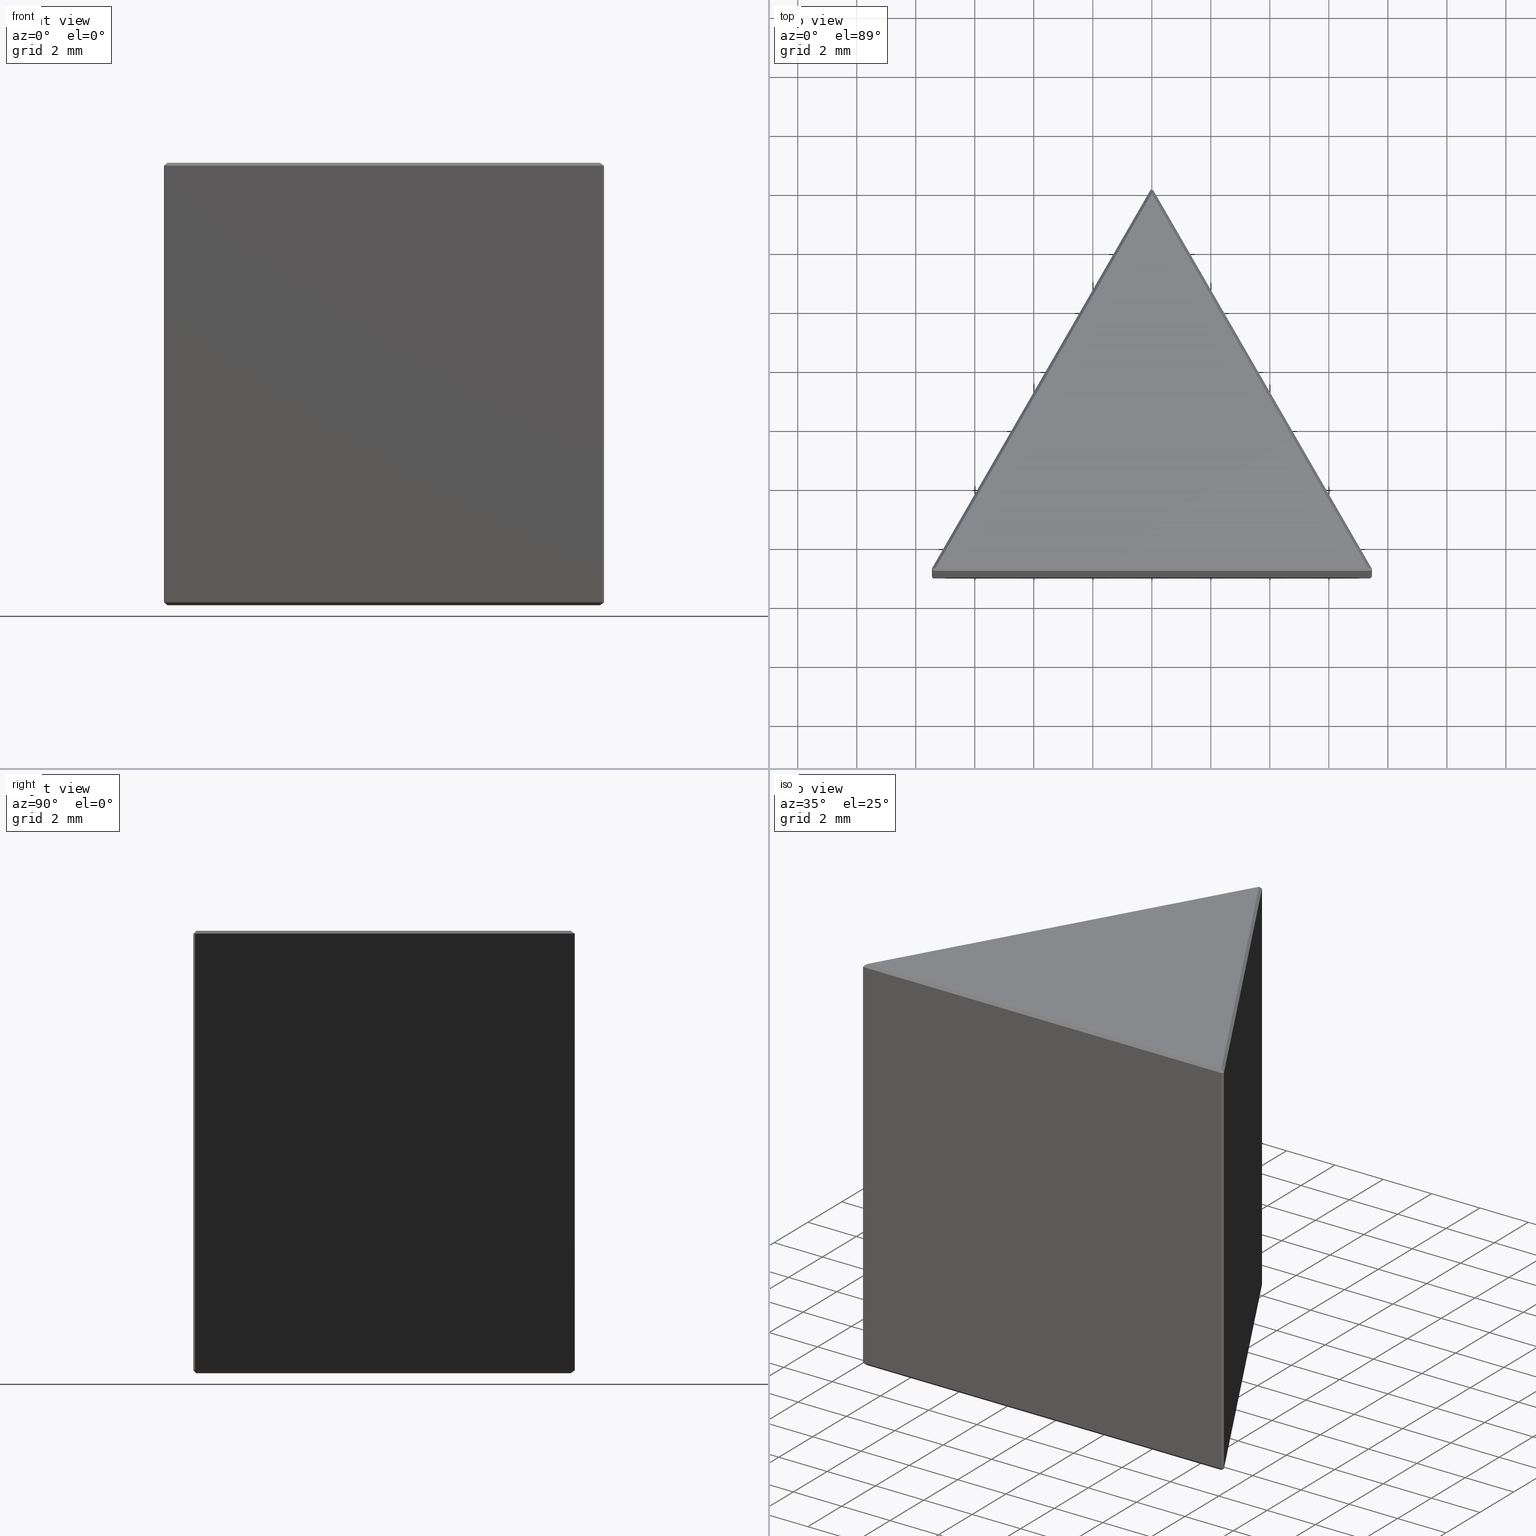
[diagram: canonical four-view strip — front | top / right | iso, engineering-drawing reading convention]
A machine part, canonical four-view strip (front | top / right | iso — engineering-drawing reading convention). The complete STEP part file that produces these views, byte-faithful:
ISO-10303-21;
HEADER;
FILE_DESCRIPTION (( 'STEP AP214' ),
    '1' );
FILE_NAME ('GPD-015-A2.STEP',
    '2022-11-08T09:14:45',
    ( '' ),
    ( '' ),
    'SwSTEP 2.0',
    'SolidWorks 2022',
    '' );
FILE_SCHEMA (( 'AUTOMOTIVE_DESIGN' ));
ENDSEC;

DATA;
#1 = DIRECTION ( 'NONE',  ( -0.4597008433809560701, 0.6279630301995642316, -0.6279630301995642316 ) ) ;
#2 = LINE ( 'NONE', #86, #348 ) ;
#3 = VERTEX_POINT ( 'NONE', #95 ) ;
#4 = DIRECTION ( 'NONE',  ( -0.7851876162409380244, 0.000000000000000000, 0.6192579489210238153 ) ) ;
#5 = ORIENTED_EDGE ( 'NONE', *, *, #187, .F. ) ;
#6 = EDGE_CURVE ( 'NONE', #84, #376, #381, .T. ) ;
#7 = DIRECTION ( 'NONE',  ( -0.5000000000000001110, 0.8660254037844387076, 0.000000000000000000 ) ) ;
#8 = ORIENTED_EDGE ( 'NONE', *, *, #495, .F. ) ;
#9 = VECTOR ( 'NONE', #98, 1000.000000000000000 ) ;
#10 = LINE ( 'NONE', #326, #322 ) ;
#11 = DIRECTION ( 'NONE',  ( -0.7736823584807547283, -0.08413109340926155921, 0.6279630301995644537 ) ) ;
#12 = ORIENTED_EDGE ( 'NONE', *, *, #75, .T. ) ;
#13 = EDGE_CURVE ( 'NONE', #156, #228, #343, .T. ) ;
#14 = DIRECTION ( 'NONE',  ( 0.1636915368707483331, 0.6109051323707288539, -0.7745966692414800736 ) ) ;
#15 = DIRECTION ( 'NONE',  ( -0.2588190451025133010, -0.9659258262890703106, -0.000000000000000000 ) ) ;
#16 = PRESENTATION_STYLE_ASSIGNMENT (( #100 ) ) ;
#17 = ORIENTED_EDGE ( 'NONE', *, *, #368, .T. ) ;
#18 = AXIS2_PLACEMENT_3D ( 'NONE', #419, #311, #496 ) ;
#19 = FILL_AREA_STYLE_COLOUR ( '', #186 ) ;
#20 = PLANE ( 'NONE',  #133 ) ;
#21 = EDGE_LOOP ( 'NONE', ( #256, #497, #431, #462 ) ) ;
#22 = CARTESIAN_POINT ( 'NONE',  ( -0.03660254037844470204, -0.06339745962155758641, 15.00000000000000000 ) ) ;
#23 = VECTOR ( 'NONE', #353, 1000.000000000000000 ) ;
#24 = VERTEX_POINT ( 'NONE', #264 ) ;
#25 = ADVANCED_FACE ( 'NONE', ( #412 ), #266, .F. ) ;
#26 = LINE ( 'NONE', #231, #49 ) ;
#27 = CARTESIAN_POINT ( 'NONE',  ( 0.04665063509461216812, -0.09419872981077971608, 0.09330127018922095006 ) ) ;
#28 = ORIENTED_EDGE ( 'NONE', *, *, #226, .F. ) ;
#29 = AXIS2_PLACEMENT_3D ( 'NONE', #85, #14, #93 ) ;
#30 = FACE_OUTER_BOUND ( 'NONE', #215, .T. ) ;
#31 = VERTEX_POINT ( 'NONE', #336 ) ;
#32 = PLANE ( 'NONE',  #70 ) ;
#33 = DIRECTION ( 'NONE',  ( -0.7071067811865765496, -0.7071067811865184849, -8.417698646425403706E-17 ) ) ;
#34 = VERTEX_POINT ( 'NONE', #105 ) ;
#35 = EDGE_CURVE ( 'NONE', #312, #31, #488, .T. ) ;
#36 = CARTESIAN_POINT ( 'NONE',  ( 7.463397459621556429, -12.92698359714502132, 0.09999999999999939493 ) ) ;
#37 = VECTOR ( 'NONE', #415, 1000.000000000000000 ) ;
#38 = PLANE ( 'NONE',  #152 ) ;
#39 = ORIENTED_EDGE ( 'NONE', *, *, #479, .T. ) ;
#40 = MANIFOLD_SOLID_BREP ( '����1', #423 ) ;
#41 = CARTESIAN_POINT ( 'NONE',  ( -7.500000000000000000, -12.99038105676657828, 0.09999999999999939493 ) ) ;
#42 = EDGE_CURVE ( 'NONE', #34, #55, #147, .T. ) ;
#43 = CARTESIAN_POINT ( 'NONE',  ( -0.02886751345948138092, -0.09226497308103918937, 14.92113248654052349 ) ) ;
#44 = ORIENTED_EDGE ( 'NONE', *, *, #42, .T. ) ;
#45 = PLANE ( 'NONE',  #102 ) ;
#46 = CARTESIAN_POINT ( 'NONE',  ( 7.463397459621556429, -12.92698359714502132, 0.09999999999999939493 ) ) ;
#47 = EDGE_LOOP ( 'NONE', ( #477, #440, #294, #309 ) ) ;
#48 = FACE_OUTER_BOUND ( 'NONE', #128, .T. ) ;
#49 = VECTOR ( 'NONE', #315, 1000.000000000000000 ) ;
#50 = CARTESIAN_POINT ( 'NONE',  ( -7.441746824526942916, -12.90288105676657793, 0.09330127018922138027 ) ) ;
#51 = EDGE_CURVE ( 'NONE', #376, #141, #338, .T. ) ;
#52 = FACE_OUTER_BOUND ( 'NONE', #208, .T. ) ;
#53 = APPLICATION_CONTEXT ( 'automotive_design' ) ;
#54 = PRODUCT_DEFINITION ( 'δ֪', '', #78, #332 ) ;
#55 = VERTEX_POINT ( 'NONE', #456 ) ;
#56 = VECTOR ( 'NONE', #197, 1000.000000000000000 ) ;
#57 = DIRECTION ( 'NONE',  ( -1.000000000000000000, 0.000000000000000000, 0.000000000000000000 ) ) ;
#58 = DIRECTION ( 'NONE',  ( -0.5000000000000001110, -0.8660254037844387076, 0.000000000000000000 ) ) ;
#59 = ORIENTED_EDGE ( 'NONE', *, *, #35, .F. ) ;
#60 = DIRECTION ( 'NONE',  ( 0.5000000000000000000, 0.8660254037844385966, -0.000000000000000000 ) ) ;
#61 = DIRECTION ( 'NONE',  ( 0.5000000000000001110, -0.8660254037844387076, -0.000000000000000000 ) ) ;
#62 = VECTOR ( 'NONE', #73, 1000.000000000000000 ) ;
#63 = VECTOR ( 'NONE', #317, 1000.000000000000000 ) ;
#64 = DIRECTION ( 'NONE',  ( 0.000000000000000000, 0.000000000000000000, -1.000000000000000000 ) ) ;
#65 = PRODUCT ( 'GPD-015-A2', 'GPD-015-A2', '', ( #94 ) ) ;
#66 = DIRECTION ( 'NONE',  ( 0.9659258262890703106, -0.2588190451025133565, 5.762713770593356352E-16 ) ) ;
#67 = CARTESIAN_POINT ( 'NONE',  ( 0.000000000000000000, 0.000000000000000000, 15.00000000000000000 ) ) ;
#68 = EDGE_CURVE ( 'NONE', #228, #55, #106, .T. ) ;
#69 = FACE_OUTER_BOUND ( 'NONE', #193, .T. ) ;
#70 = AXIS2_PLACEMENT_3D ( 'NONE', #250, #405, #486 ) ;
#71 = LINE ( 'NONE', #239, #62 ) ;
#72 = FACE_OUTER_BOUND ( 'NONE', #391, .T. ) ;
#73 = DIRECTION ( 'NONE',  ( 0.000000000000000000, 0.000000000000000000, 1.000000000000000000 ) ) ;
#74 = DIRECTION ( 'NONE',  ( 0.000000000000000000, -0.000000000000000000, 1.000000000000000000 ) ) ;
#75 = EDGE_CURVE ( 'NONE', #91, #24, #101, .T. ) ;
#76 = VECTOR ( 'NONE', #466, 1000.000000000000114 ) ;
#77 = CARTESIAN_POINT ( 'NONE',  ( -0.08660254037843957697, -0.04999999999999753253, 15.00000000000000000 ) ) ;
#78 = PRODUCT_DEFINITION_FORMATION_WITH_SPECIFIED_SOURCE ( '�κ�', '', #65, .NOT_KNOWN. ) ;
#79 = UNCERTAINTY_MEASURE_WITH_UNIT (LENGTH_MEASURE( 1.000000000000000082E-05 ), #207, 'distance_accuracy_value', 'NONE');
#80 = DIRECTION ( 'NONE',  ( 0.7851876162409382465, 0.000000000000000000, 0.6192579489210234822 ) ) ;
#81 = EDGE_LOOP ( 'NONE', ( #268, #59, #218, #117 ) ) ;
#82 = DIRECTION ( 'NONE',  ( 0.1636915368707612950, 0.6109051323707358483, 0.7745966692414717469 ) ) ;
#83 = DIRECTION ( 'NONE',  ( -0.6123724356957945814, -0.3535533905932737864, 0.7071067811865474617 ) ) ;
#84 = VERTEX_POINT ( 'NONE', #484 ) ;
#85 = CARTESIAN_POINT ( 'NONE',  ( -0.03660254037844470204, -0.06339745962155758641, 0.1000000000000006301 ) ) ;
#86 = CARTESIAN_POINT ( 'NONE',  ( 0.05000000000000061340, -0.08660254037844491992, 14.90000000000000391 ) ) ;
#87 = ORIENTED_EDGE ( 'NONE', *, *, #235, .T. ) ;
#88 = CARTESIAN_POINT ( 'NONE',  ( 7.399999999999995026, -12.99038105676657828, 14.90000000000000391 ) ) ;
#89 = AXIS2_PLACEMENT_3D ( 'NONE', #77, #473, #249 ) ;
#90 = CARTESIAN_POINT ( 'NONE',  ( -7.449999999999999289, -12.90377851638813311, 14.90000000000000391 ) ) ;
#91 = VERTEX_POINT ( 'NONE', #223 ) ;
#92 = VECTOR ( 'NONE', #406, 1000.000000000000114 ) ;
#93 = DIRECTION ( 'NONE',  ( 0.000000000000000000, 0.7851876162409433535, 0.6192579489210172650 ) ) ;
#94 = PRODUCT_CONTEXT ( 'NONE', #352, 'mechanical' ) ;
#95 = CARTESIAN_POINT ( 'NONE',  ( -7.449999999999999289, -12.90377851638813311, 14.90000000000000391 ) ) ;
#96 = ORIENTED_EDGE ( 'NONE', *, *, #342, .T. ) ;
#97 = ADVANCED_FACE ( 'NONE', ( #375 ), #20, .T. ) ;
#98 = DIRECTION ( 'NONE',  ( -0.2113248654051963216, 0.7886751345948054270, 0.5773502691896326144 ) ) ;
#99 = PRODUCT_DEFINITION_SHAPE ( 'NONE', 'NONE',  #54 ) ;
#100 = SURFACE_STYLE_USAGE ( .BOTH. , #146 ) ;
#101 = LINE ( 'NONE', #452, #241 ) ;
#102 = AXIS2_PLACEMENT_3D ( 'NONE', #429, #209, #4 ) ;
#103 = ORIENTED_EDGE ( 'NONE', *, *, #450, .T. ) ;
#104 = SURFACE_STYLE_FILL_AREA ( #410 ) ;
#105 = CARTESIAN_POINT ( 'NONE',  ( -7.426794919243112858, -12.99038105676657828, 0.09999999999999939493 ) ) ;
#106 = LINE ( 'NONE', #418, #395 ) ;
#107 = STYLED_ITEM ( 'NONE', ( #384 ), #40 ) ;
#108 = LINE ( 'NONE', #200, #313 ) ;
#109 = PLANE ( 'NONE',  #212 ) ;
#110 = EDGE_LOOP ( 'NONE', ( #389, #434, #385, #258 ) ) ;
#111 = EDGE_CURVE ( 'NONE', #312, #141, #344, .T. ) ;
#112 = CARTESIAN_POINT ( 'NONE',  ( -0.03660254037844470204, -0.06339745962155758641, 0.1000000000000006301 ) ) ;
#113 = EDGE_LOOP ( 'NONE', ( #318, #96, #176 ) ) ;
#114 = AXIS2_PLACEMENT_3D ( 'NONE', #195, #464, #155 ) ;
#115 = AXIS2_PLACEMENT_3D ( 'NONE', #330, #123, #394 ) ;
#116 = CARTESIAN_POINT ( 'NONE',  ( 7.399999999999995026, -12.99038105676657828, 15.00000000000000000 ) ) ;
#117 = ORIENTED_EDGE ( 'NONE', *, *, #75, .F. ) ;
#118 = FACE_OUTER_BOUND ( 'NONE', #158, .T. ) ;
#119 = CARTESIAN_POINT ( 'NONE',  ( -7.405662432702593279, -12.96924857022605870, 14.92113248654052349 ) ) ;
#120 = PLANE ( 'NONE',  #202 ) ;
#121 = VECTOR ( 'NONE', #377, 1000.000000000000000 ) ;
#122 = FACE_OUTER_BOUND ( 'NONE', #480, .T. ) ;
#123 = DIRECTION ( 'NONE',  ( 0.9659258262890725311, 0.2588190451025050853, 0.000000000000000000 ) ) ;
#124 = EDGE_LOOP ( 'NONE', ( #252, #500, #196 ) ) ;
#125 = EDGE_CURVE ( 'NONE', #55, #3, #71, .T. ) ;
#126 = DIRECTION ( 'NONE',  ( -1.000000000000000000, 0.000000000000000000, 0.000000000000000000 ) ) ;
#127 = FACE_OUTER_BOUND ( 'NONE', #222, .T. ) ;
#128 = EDGE_LOOP ( 'NONE', ( #350, #44, #475 ) ) ;
#129 = PLANE ( 'NONE',  #89 ) ;
#130 = FACE_OUTER_BOUND ( 'NONE', #281, .T. ) ;
#131 = ORIENTED_EDGE ( 'NONE', *, *, #246, .F. ) ;
#132 = DIRECTION ( 'NONE',  ( 0.000000000000000000, -0.7851876162409365811, 0.6192579489210255916 ) ) ;
#133 = AXIS2_PLACEMENT_3D ( 'NONE', #139, #297, #60 ) ;
#134 = LINE ( 'NONE', #43, #63 ) ;
#135 = VERTEX_POINT ( 'NONE', #390 ) ;
#136 = SURFACE_SIDE_STYLE ('',( #104 ) ) ;
#137 = ADVANCED_FACE ( 'NONE', ( #30 ), #157, .F. ) ;
#138 = EDGE_LOOP ( 'NONE', ( #407, #306, #274, #328 ) ) ;
#139 = CARTESIAN_POINT ( 'NONE',  ( 0.08660254037843956310, -0.04999999999999752559, 15.00000000000000000 ) ) ;
#140 = VECTOR ( 'NONE', #163, 1000.000000000000000 ) ;
#141 = VERTEX_POINT ( 'NONE', #191 ) ;
#142 = PRESENTATION_LAYER_ASSIGNMENT (  '', '', ( #331 ) ) ;
#143 = EDGE_CURVE ( 'NONE', #205, #144, #153, .T. ) ;
#144 = VERTEX_POINT ( 'NONE', #351 ) ;
#145 = ADVANCED_FACE ( 'NONE', ( #72 ), #236, .F. ) ;
#146 = SURFACE_SIDE_STYLE ('',( #451 ) ) ;
#147 = LINE ( 'NONE', #301, #481 ) ;
#148 = ORIENTED_EDGE ( 'NONE', *, *, #154, .T. ) ;
#149 = DIRECTION ( 'NONE',  ( -0.8660254037844387076, -0.5000000000000001110, 0.000000000000000000 ) ) ;
#150 = ORIENTED_EDGE ( 'NONE', *, *, #414, .T. ) ;
#151 = VECTOR ( 'NONE', #386, 999.9999999999998863 ) ;
#152 = AXIS2_PLACEMENT_3D ( 'NONE', #280, #15, #436 ) ;
#153 = LINE ( 'NONE', #270, #275 ) ;
#154 = EDGE_CURVE ( 'NONE', #144, #312, #302, .T. ) ;
#155 = DIRECTION ( 'NONE',  ( 0.000000000000000000, 0.000000000000000000, -1.000000000000000000 ) ) ;
#156 = VERTEX_POINT ( 'NONE', #271 ) ;
#157 = PLANE ( 'NONE',  #114 ) ;
#158 = EDGE_LOOP ( 'NONE', ( #345, #467, #5 ) ) ;
#159 = VECTOR ( 'NONE', #396, 1000.000000000000114 ) ;
#160 = CARTESIAN_POINT ( 'NONE',  ( 7.399999999999995026, -12.99038105676657828, 14.90000000000000391 ) ) ;
#161 = ADVANCED_FACE ( 'NONE', ( #118 ), #349, .T. ) ;
#162 = DIRECTION ( 'NONE',  ( 0.4472135954999463259, -0.4472135954999830187, -0.7745966692414756327 ) ) ;
#163 = DIRECTION ( 'NONE',  ( 0.000000000000000000, 0.000000000000000000, -1.000000000000000000 ) ) ;
#164 = LINE ( 'NONE', #119, #253 ) ;
#165 = FACE_OUTER_BOUND ( 'NONE', #124, .T. ) ;
#166 = ORIENTED_EDGE ( 'NONE', *, *, #226, .T. ) ;
#167 = EDGE_CURVE ( 'NONE', #3, #156, #490, .T. ) ;
#168 = PLANE ( 'NONE',  #379 ) ;
#169 = VECTOR ( 'NONE', #439, 1000.000000000000114 ) ;
#170 = CARTESIAN_POINT ( 'NONE',  ( 7.002976905571655370E-16, -0.1999999999999912959, 15.00000000000000000 ) ) ;
#171 = EDGE_LOOP ( 'NONE', ( #443, #437, #465, #299 ) ) ;
#172 = CARTESIAN_POINT ( 'NONE',  ( 7.399999999999995026, -12.99038105676657828, 14.90000000000000391 ) ) ;
#173 = PLANE ( 'NONE',  #493 ) ;
#174 = EDGE_LOOP ( 'NONE', ( #150, #189, #277 ) ) ;
#175 = CARTESIAN_POINT ( 'NONE',  ( 0.000000000000000000, -12.89038105676658219, 15.00000000000000000 ) ) ;
#176 = ORIENTED_EDGE ( 'NONE', *, *, #453, .F. ) ;
#177 = EDGE_CURVE ( 'NONE', #156, #376, #458, .T. ) ;
#178 =( LENGTH_UNIT ( ) NAMED_UNIT ( * ) SI_UNIT ( .MILLI., .METRE. ) );
#179 = AXIS2_PLACEMENT_3D ( 'NONE', #220, #183, #188 ) ;
#180 = UNCERTAINTY_MEASURE_WITH_UNIT (LENGTH_MEASURE( 1.000000000000000082E-05 ), #178, 'distance_accuracy_value', 'NONE');
#181 = CARTESIAN_POINT ( 'NONE',  ( 0.05000000000000061340, -0.08660254037844491992, 14.90000000000000391 ) ) ;
#182 = CARTESIAN_POINT ( 'NONE',  ( 0.000000000000000000, 0.000000000000000000, 0.09999999999999939493 ) ) ;
#183 = DIRECTION ( 'NONE',  ( 0.000000000000000000, 0.000000000000000000, 1.000000000000000000 ) ) ;
#184 = DIRECTION ( 'NONE',  ( -0.5000000000000000000, -0.8660254037844385966, 0.000000000000000000 ) ) ;
#185 = VECTOR ( 'NONE', #494, 1000.000000000000114 ) ;
#186 = COLOUR_RGB ( '',1.000000000000000000, 1.000000000000000000, 1.000000000000000000 ) ;
#187 = EDGE_CURVE ( 'NONE', #24, #141, #392, .T. ) ;
#188 = DIRECTION ( 'NONE',  ( 1.000000000000000000, 0.000000000000000000, 0.000000000000000000 ) ) ;
#189 = ORIENTED_EDGE ( 'NONE', *, *, #495, .T. ) ;
#190 = CARTESIAN_POINT ( 'NONE',  ( -7.120345233597996458E-16, -0.1999999999999990674, 0.000000000000000000 ) ) ;
#191 = CARTESIAN_POINT ( 'NONE',  ( 7.463397459621556429, -12.92698359714502132, 14.90000000000000391 ) ) ;
#192 = EDGE_CURVE ( 'NONE', #3, #91, #272, .T. ) ;
#193 = EDGE_LOOP ( 'NONE', ( #166, #424, #103 ) ) ;
#194 = VECTOR ( 'NONE', #305, 1000.000000000000114 ) ;
#195 = CARTESIAN_POINT ( 'NONE',  ( 7.463397459621556429, -12.92698359714502132, 15.00000000000000000 ) ) ;
#196 = ORIENTED_EDGE ( 'NONE', *, *, #192, .F. ) ;
#197 = DIRECTION ( 'NONE',  ( 0.7071067811865765496, 0.7071067811865185959, 5.642141084862626987E-17 ) ) ;
#198 = EDGE_LOOP ( 'NONE', ( #148, #459, #290, #448 ) ) ;
#199 = EDGE_CURVE ( 'NONE', #34, #144, #26, .T. ) ;
#200 = CARTESIAN_POINT ( 'NONE',  ( -7.426794919243112858, -12.99038105676657828, 15.00000000000000000 ) ) ;
#201 = ORIENTED_EDGE ( 'NONE', *, *, #393, .T. ) ;
#202 = AXIS2_PLACEMENT_3D ( 'NONE', #90, #430, #80 ) ;
#203 = LINE ( 'NONE', #172, #449 ) ;
#204 = LINE ( 'NONE', #327, #92 ) ;
#205 = VERTEX_POINT ( 'NONE', #36 ) ;
#206 = DIRECTION ( 'NONE',  ( 1.000000000000000000, 0.000000000000000000, 0.000000000000000000 ) ) ;
#207 =( LENGTH_UNIT ( ) NAMED_UNIT ( * ) SI_UNIT ( .MILLI., .METRE. ) );
#208 = EDGE_LOOP ( 'NONE', ( #87, #17, #131 ) ) ;
#209 = DIRECTION ( 'NONE',  ( -0.6109051323707357373, -0.1636915368707450857, -0.7745966692414752996 ) ) ;
#210 = DIRECTION ( 'NONE',  ( -0.5000000000000000000, 0.8660254037844385966, 0.000000000000000000 ) ) ;
#211 = ORIENTED_EDGE ( 'NONE', *, *, #235, .F. ) ;
#212 = AXIS2_PLACEMENT_3D ( 'NONE', #67, #387, #422 ) ;
#213 = PLANE ( 'NONE',  #388 ) ;
#214 = MECHANICAL_DESIGN_GEOMETRIC_PRESENTATION_REPRESENTATION (  '', ( #331 ), #254 ) ;
#215 = EDGE_LOOP ( 'NONE', ( #492, #367, #489, #399 ) ) ;
#216 = LINE ( 'NONE', #355, #354 ) ;
#217 = FACE_OUTER_BOUND ( 'NONE', #198, .T. ) ;
#218 = ORIENTED_EDGE ( 'NONE', *, *, #337, .F. ) ;
#219 = AXIS2_PLACEMENT_3D ( 'NONE', #182, #221, #184 ) ;
#220 = CARTESIAN_POINT ( 'NONE',  ( 0.000000000000000000, 0.000000000000000000, 0.000000000000000000 ) ) ;
#221 = DIRECTION ( 'NONE',  ( 0.6123724356957959136, -0.3535533905932745635, 0.7071067811865459074 ) ) ;
#222 = EDGE_LOOP ( 'NONE', ( #237, #28, #211, #300 ) ) ;
#223 = CARTESIAN_POINT ( 'NONE',  ( -7.326794919243119431, -12.89038105676658219, 15.00000000000000000 ) ) ;
#224 = EDGE_CURVE ( 'NONE', #31, #34, #108, .T. ) ;
#225 = LINE ( 'NONE', #259, #296 ) ;
#226 = EDGE_CURVE ( 'NONE', #232, #135, #421, .T. ) ;
#227 = VECTOR ( 'NONE', #66, 1000.000000000000114 ) ;
#228 = VERTEX_POINT ( 'NONE', #112 ) ;
#229 = LINE ( 'NONE', #27, #194 ) ;
#230 = ORIENTED_EDGE ( 'NONE', *, *, #269, .F. ) ;
#231 = CARTESIAN_POINT ( 'NONE',  ( -7.500000000000000000, -12.99038105676657828, 0.09999999999999939493 ) ) ;
#232 = VERTEX_POINT ( 'NONE', #190 ) ;
#233 = LINE ( 'NONE', #316, #261 ) ;
#234 = ORIENTED_EDGE ( 'NONE', *, *, #224, .F. ) ;
#235 = EDGE_CURVE ( 'NONE', #84, #232, #229, .T. ) ;
#236 = PLANE ( 'NONE',  #463 ) ;
#237 = ORIENTED_EDGE ( 'NONE', *, *, #453, .T. ) ;
#238 = ADVANCED_FACE ( 'NONE', ( #460 ), #109, .F. ) ;
#239 = CARTESIAN_POINT ( 'NONE',  ( -7.449999999999999289, -12.90377851638813311, 15.00000000000000000 ) ) ;
#240 = DIRECTION ( 'NONE',  ( -0.5773502691896222894, -0.5773502691896273964, 0.5773502691896275074 ) ) ;
#241 = VECTOR ( 'NONE', #262, 1000.000000000000000 ) ;
#242 = CARTESIAN_POINT ( 'NONE',  ( -7.413397459621560159, -13.04038105676657544, 15.00000000000000000 ) ) ;
#243 =( NAMED_UNIT ( * ) PLANE_ANGLE_UNIT ( ) SI_UNIT ( $, .RADIAN. ) );
#244 = ORIENTED_EDGE ( 'NONE', *, *, #42, .F. ) ;
#245 = PLANE ( 'NONE',  #372 ) ;
#246 = EDGE_CURVE ( 'NONE', #84, #228, #233, .T. ) ;
#247 = CARTESIAN_POINT ( 'NONE',  ( -7.426794919243112858, -12.99038105676657828, 0.09999999999999939493 ) ) ;
#248 = ORIENTED_EDGE ( 'NONE', *, *, #269, .T. ) ;
#249 = DIRECTION ( 'NONE',  ( 0.5000000000000000000, -0.8660254037844385966, 0.000000000000000000 ) ) ;
#250 = CARTESIAN_POINT ( 'NONE',  ( 0.000000000000000000, 0.000000000000000000, 0.000000000000000000 ) ) ;
#251 = DIRECTION ( 'NONE',  ( 0.3139815150998024329, 0.7120941236088188520, -0.6279630301995657859 ) ) ;
#252 = ORIENTED_EDGE ( 'NONE', *, *, #416, .T. ) ;
#253 = VECTOR ( 'NONE', #279, 1000.000000000000000 ) ;
#254 =( GEOMETRIC_REPRESENTATION_CONTEXT ( 3 ) GLOBAL_UNCERTAINTY_ASSIGNED_CONTEXT ( ( #428 ) ) GLOBAL_UNIT_ASSIGNED_CONTEXT ( ( #454, #442, #487 ) ) REPRESENTATION_CONTEXT ( 'NONE', 'WORKASPACE' ) );
#255 = DIRECTION ( 'NONE',  ( 0.4597008433809345318, -0.6279630301995721142, -0.6279630301995721142 ) ) ;
#256 = ORIENTED_EDGE ( 'NONE', *, *, #125, .T. ) ;
#257 = ORIENTED_EDGE ( 'NONE', *, *, #6, .T. ) ;
#258 = ORIENTED_EDGE ( 'NONE', *, *, #167, .F. ) ;
#259 = CARTESIAN_POINT ( 'NONE',  ( 0.000000000000000000, -12.89038105676657864, 0.000000000000000000 ) ) ;
#260 = ADVANCED_FACE ( 'NONE', ( #122 ), #245, .T. ) ;
#261 = VECTOR ( 'NONE', #404, 1000.000000000000114 ) ;
#262 = DIRECTION ( 'NONE',  ( 1.000000000000000000, 0.000000000000000000, 0.000000000000000000 ) ) ;
#263 = ADVANCED_FACE ( 'NONE', ( #52 ), #397, .T. ) ;
#264 = CARTESIAN_POINT ( 'NONE',  ( 7.326794919243120319, -12.89038105676658219, 15.00000000000000000 ) ) ;
#265 = CARTESIAN_POINT ( 'NONE',  ( 0.05000000000000056483, -0.08660254037844497543, 15.00000000000000000 ) ) ;
#266 = PLANE ( 'NONE',  #219 ) ;
#267 = VECTOR ( 'NONE', #64, 1000.000000000000000 ) ;
#268 = ORIENTED_EDGE ( 'NONE', *, *, #288, .F. ) ;
#269 = EDGE_CURVE ( 'NONE', #24, #482, #10, .T. ) ;
#270 = CARTESIAN_POINT ( 'NONE',  ( 7.463397459621556429, -12.92698359714502132, 0.09999999999999939493 ) ) ;
#271 = CARTESIAN_POINT ( 'NONE',  ( -0.03660254037844470204, -0.06339745962155758641, 14.90000000000000391 ) ) ;
#272 = LINE ( 'NONE', #427, #151 ) ;
#273 = ADVANCED_FACE ( 'NONE', ( #357 ), #129, .T. ) ;
#274 = ORIENTED_EDGE ( 'NONE', *, *, #246, .T. ) ;
#275 = VECTOR ( 'NONE', #33, 999.9999999999998863 ) ;
#276 = DIRECTION ( 'NONE',  ( 0.5000000000000001110, 0.8660254037844387076, 0.000000000000000000 ) ) ;
#277 = ORIENTED_EDGE ( 'NONE', *, *, #177, .F. ) ;
#278 = CARTESIAN_POINT ( 'NONE',  ( 0.05000000000000061340, -0.08660254037844491992, 14.90000000000000391 ) ) ;
#279 = DIRECTION ( 'NONE',  ( 0.5773502691896157391, 0.5773502691896308381, 0.5773502691896308381 ) ) ;
#280 = CARTESIAN_POINT ( 'NONE',  ( -0.03660254037844470204, -0.06339745962155758641, 15.00000000000000000 ) ) ;
#281 = EDGE_LOOP ( 'NONE', ( #244, #234, #382, #362 ) ) ;
#282 = COLOUR_RGB ( '',1.000000000000000000, 1.000000000000000000, 1.000000000000000000 ) ;
#283 = ADVANCED_FACE ( 'NONE', ( #287 ), #168, .F. ) ;
#284 = CARTESIAN_POINT ( 'NONE',  ( 7.500000000000000000, -12.99038105676657828, 0.09999999999999939493 ) ) ;
#285 = ORIENTED_EDGE ( 'NONE', *, *, #51, .T. ) ;
#286 = DIRECTION ( 'NONE',  ( 0.000000000000000000, 1.000000000000000000, 0.000000000000000000 ) ) ;
#287 = FACE_OUTER_BOUND ( 'NONE', #47, .T. ) ;
#288 = EDGE_CURVE ( 'NONE', #31, #91, #164, .T. ) ;
#289 = FACE_OUTER_BOUND ( 'NONE', #138, .T. ) ;
#290 = ORIENTED_EDGE ( 'NONE', *, *, #224, .T. ) ;
#291 = MECHANICAL_DESIGN_GEOMETRIC_PRESENTATION_REPRESENTATION (  '', ( #107 ), #347 ) ;
#292 = FACE_OUTER_BOUND ( 'NONE', #113, .T. ) ;
#293 = LINE ( 'NONE', #433, #140 ) ;
#294 = ORIENTED_EDGE ( 'NONE', *, *, #426, .F. ) ;
#295 = ADVANCED_FACE ( 'NONE', ( #438 ), #360, .T. ) ;
#296 = VECTOR ( 'NONE', #57, 1000.000000000000000 ) ;
#297 = DIRECTION ( 'NONE',  ( -0.6123724356957973569, 0.3535533905932753962, 0.7071067811865443531 ) ) ;
#298 = SHAPE_DEFINITION_REPRESENTATION ( #99, #445 ) ;
#299 = ORIENTED_EDGE ( 'NONE', *, *, #450, .F. ) ;
#300 = ORIENTED_EDGE ( 'NONE', *, *, #479, .F. ) ;
#301 = CARTESIAN_POINT ( 'NONE',  ( -7.426794919243112858, -12.99038105676657828, 0.09999999999999939493 ) ) ;
#302 = LINE ( 'NONE', #116, #23 ) ;
#303 = VECTOR ( 'NONE', #276, 999.9999999999998863 ) ;
#304 = PRODUCT_RELATED_PRODUCT_CATEGORY ( 'part', '', ( #65 ) ) ;
#305 = DIRECTION ( 'NONE',  ( -0.3139815150997820048, -0.7120941236088359494, -0.6279630301995564601 ) ) ;
#306 = ORIENTED_EDGE ( 'NONE', *, *, #6, .F. ) ;
#307 = ADVANCED_FACE ( 'NONE', ( #48 ), #45, .T. ) ;
#308 = CARTESIAN_POINT ( 'NONE',  ( 7.434529946162070857, -12.91924857022605799, 14.92113248654052526 ) ) ;
#309 = ORIENTED_EDGE ( 'NONE', *, *, #374, .F. ) ;
#310 = EDGE_CURVE ( 'NONE', #482, #91, #320, .T. ) ;
#311 = DIRECTION ( 'NONE',  ( 0.4472135954999530427, -0.4472135954999897911, 0.7745966692414678612 ) ) ;
#312 = VERTEX_POINT ( 'NONE', #88 ) ;
#313 = VECTOR ( 'NONE', #502, 1000.000000000000000 ) ;
#314 = AXIS2_PLACEMENT_3D ( 'NONE', #370, #286, #74 ) ;
#315 = DIRECTION ( 'NONE',  ( 1.000000000000000000, 0.000000000000000000, 0.000000000000000000 ) ) ;
#316 = CARTESIAN_POINT ( 'NONE',  ( -0.03660254037844470204, -0.06339745962155758641, 0.1000000000000006301 ) ) ;
#317 = DIRECTION ( 'NONE',  ( 0.2113248654052017617, -0.7886751345948004310, 0.5773502691896373884 ) ) ;
#318 = ORIENTED_EDGE ( 'NONE', *, *, #143, .T. ) ;
#319 = ADVANCED_FACE ( 'NONE', ( #432 ), #213, .T. ) ;
#320 = LINE ( 'NONE', #242, #159 ) ;
#321 = LINE ( 'NONE', #46, #457 ) ;
#322 = VECTOR ( 'NONE', #468, 1000.000000000000114 ) ;
#323 = CARTESIAN_POINT ( 'NONE',  ( 0.05000000000000061340, -0.08660254037844491992, 14.90000000000000391 ) ) ;
#324 = LINE ( 'NONE', #366, #169 ) ;
#325 = VERTEX_POINT ( 'NONE', #470 ) ;
#326 = CARTESIAN_POINT ( 'NONE',  ( -0.08660254037843957697, -0.04999999999999753253, 15.00000000000000000 ) ) ;
#327 = CARTESIAN_POINT ( 'NONE',  ( 0.08660254037844293540, -0.04999999999999946848, 0.000000000000000000 ) ) ;
#328 = ORIENTED_EDGE ( 'NONE', *, *, #13, .F. ) ;
#329 = PLANE ( 'NONE',  #417 ) ;
#330 = CARTESIAN_POINT ( 'NONE',  ( -7.426794919243112858, -12.99038105676657828, 15.00000000000000000 ) ) ;
#331 = STYLED_ITEM ( 'NONE', ( #16 ), #445 ) ;
#332 = PRODUCT_DEFINITION_CONTEXT ( 'detailed design', #53, 'design' ) ;
#333 =( NAMED_UNIT ( * ) SI_UNIT ( $, .STERADIAN. ) SOLID_ANGLE_UNIT ( ) );
#334 = LINE ( 'NONE', #50, #364 ) ;
#335 = LINE ( 'NONE', #446, #9 ) ;
#336 = CARTESIAN_POINT ( 'NONE',  ( -7.426794919243112858, -12.99038105676657828, 14.90000000000000391 ) ) ;
#337 = EDGE_CURVE ( 'NONE', #24, #312, #203, .T. ) ;
#338 = LINE ( 'NONE', #483, #485 ) ;
#339 = APPLICATION_PROTOCOL_DEFINITION ( 'draft international standard', 'automotive_design', 1998, #53 ) ;
#340 = SURFACE_STYLE_USAGE ( .BOTH. , #136 ) ;
#341 = DIRECTION ( 'NONE',  ( 0.000000000000000000, 0.8660254037844242747, -0.5000000000000247580 ) ) ;
#342 = EDGE_CURVE ( 'NONE', #144, #135, #216, .T. ) ;
#343 = LINE ( 'NONE', #22, #267 ) ;
#344 = LINE ( 'NONE', #160, #56 ) ;
#345 = ORIENTED_EDGE ( 'NONE', *, *, #337, .T. ) ;
#346 = CARTESIAN_POINT ( 'NONE',  ( 7.500000000000000000, -12.99038105676657828, 15.00000000000000000 ) ) ;
#347 =( GEOMETRIC_REPRESENTATION_CONTEXT ( 3 ) GLOBAL_UNCERTAINTY_ASSIGNED_CONTEXT ( ( #180 ) ) GLOBAL_UNIT_ASSIGNED_CONTEXT ( ( #178, #444, #333 ) ) REPRESENTATION_CONTEXT ( 'NONE', 'WORKASPACE' ) );
#348 = VECTOR ( 'NONE', #251, 1000.000000000000114 ) ;
#349 = PLANE ( 'NONE',  #18 ) ;
#350 = ORIENTED_EDGE ( 'NONE', *, *, #426, .T. ) ;
#351 = CARTESIAN_POINT ( 'NONE',  ( 7.399999999999995026, -12.99038105676657828, 0.09999999999999939493 ) ) ;
#352 = APPLICATION_CONTEXT ( 'automotive_design' ) ;
#353 = DIRECTION ( 'NONE',  ( 0.000000000000000000, 0.000000000000000000, 1.000000000000000000 ) ) ;
#354 = VECTOR ( 'NONE', #1, 1000.000000000000000 ) ;
#355 = CARTESIAN_POINT ( 'NONE',  ( 7.395096189432329936, -12.98368232695579927, 0.09330127018922129700 ) ) ;
#356 = LINE ( 'NONE', #247, #471 ) ;
#357 = FACE_OUTER_BOUND ( 'NONE', #359, .T. ) ;
#358 =( NAMED_UNIT ( * ) SI_UNIT ( $, .STERADIAN. ) SOLID_ANGLE_UNIT ( ) );
#359 = EDGE_LOOP ( 'NONE', ( #371, #411, #8, #230 ) ) ;
#360 = PLANE ( 'NONE',  #501 ) ;
#361 = LINE ( 'NONE', #474, #403 ) ;
#362 = ORIENTED_EDGE ( 'NONE', *, *, #125, .F. ) ;
#363 = ADVANCED_FACE ( 'NONE', ( #292 ), #329, .T. ) ;
#364 = VECTOR ( 'NONE', #11, 1000.000000000000000 ) ;
#365 = DIRECTION ( 'NONE',  ( 0.000000000000000000, -0.7071067811865475727, 0.7071067811865475727 ) ) ;
#366 = CARTESIAN_POINT ( 'NONE',  ( -7.449999999999999289, -12.90377851638813311, 14.90000000000000391 ) ) ;
#367 = ORIENTED_EDGE ( 'NONE', *, *, #154, .F. ) ;
#368 = EDGE_CURVE ( 'NONE', #232, #228, #335, .T. ) ;
#369 = DIRECTION ( 'NONE',  ( 0.000000000000000000, 0.000000000000000000, 1.000000000000000000 ) ) ;
#370 = CARTESIAN_POINT ( 'NONE',  ( -7.500000000000000000, -12.99038105676657828, 15.00000000000000000 ) ) ;
#371 = ORIENTED_EDGE ( 'NONE', *, *, #187, .T. ) ;
#372 = AXIS2_PLACEMENT_3D ( 'NONE', #435, #369, #441 ) ;
#373 =( GEOMETRIC_REPRESENTATION_CONTEXT ( 3 ) GLOBAL_UNCERTAINTY_ASSIGNED_CONTEXT ( ( #79 ) ) GLOBAL_UNIT_ASSIGNED_CONTEXT ( ( #207, #243, #358 ) ) REPRESENTATION_CONTEXT ( 'NONE', 'WORKASPACE' ) );
#374 = EDGE_CURVE ( 'NONE', #135, #325, #225, .T. ) ;
#375 = FACE_OUTER_BOUND ( 'NONE', #110, .T. ) ;
#376 = VERTEX_POINT ( 'NONE', #181 ) ;
#377 = DIRECTION ( 'NONE',  ( 0.000000000000000000, 0.000000000000000000, 1.000000000000000000 ) ) ;
#378 = ADVANCED_FACE ( 'NONE', ( #69 ), #32, .F. ) ;
#379 = AXIS2_PLACEMENT_3D ( 'NONE', #41, #400, #206 ) ;
#380 = APPLICATION_PROTOCOL_DEFINITION ( 'draft international standard', 'automotive_design', 1998, #352 ) ;
#381 = LINE ( 'NONE', #265, #121 ) ;
#382 = ORIENTED_EDGE ( 'NONE', *, *, #416, .F. ) ;
#383 = EDGE_CURVE ( 'NONE', #325, #55, #334, .T. ) ;
#384 = PRESENTATION_STYLE_ASSIGNMENT (( #340 ) ) ;
#385 = ORIENTED_EDGE ( 'NONE', *, *, #414, .F. ) ;
#386 = DIRECTION ( 'NONE',  ( 0.7736823584807538401, 0.08413109340926433477, 0.6279630301995650088 ) ) ;
#387 = DIRECTION ( 'NONE',  ( 0.8660254037844387076, -0.5000000000000001110, 0.000000000000000000 ) ) ;
#388 = AXIS2_PLACEMENT_3D ( 'NONE', #175, #365, #126 ) ;
#389 = ORIENTED_EDGE ( 'NONE', *, *, #192, .T. ) ;
#390 = CARTESIAN_POINT ( 'NONE',  ( 7.326794919243113213, -12.89038105676657864, 0.000000000000000000 ) ) ;
#391 = EDGE_LOOP ( 'NONE', ( #257, #285, #201, #39 ) ) ;
#392 = LINE ( 'NONE', #308, #185 ) ;
#393 = EDGE_CURVE ( 'NONE', #141, #205, #293, .T. ) ;
#394 = DIRECTION ( 'NONE',  ( 0.000000000000000000, 0.000000000000000000, -1.000000000000000000 ) ) ;
#395 = VECTOR ( 'NONE', #58, 999.9999999999998863 ) ;
#396 = DIRECTION ( 'NONE',  ( -0.5000000000000001110, -0.8660254037844385966, 0.000000000000000000 ) ) ;
#397 = PLANE ( 'NONE',  #29 ) ;
#398 = PLANE ( 'NONE',  #314 ) ;
#399 = ORIENTED_EDGE ( 'NONE', *, *, #393, .F. ) ;
#400 = DIRECTION ( 'NONE',  ( -0.000000000000000000, 0.7071067811865475727, 0.7071067811865475727 ) ) ;
#401 = ADVANCED_FACE ( 'NONE', ( #127 ), #173, .F. ) ;
#402 = PRESENTATION_LAYER_ASSIGNMENT (  '', '', ( #107 ) ) ;
#403 = VECTOR ( 'NONE', #7, 999.9999999999998863 ) ;
#404 = DIRECTION ( 'NONE',  ( -0.9659258262890703106, 0.2588190451025133010, 1.432351769963625949E-14 ) ) ;
#405 = DIRECTION ( 'NONE',  ( 0.000000000000000000, 0.000000000000000000, 1.000000000000000000 ) ) ;
#406 = DIRECTION ( 'NONE',  ( 0.5000000000000001110, 0.8660254037844385966, 0.000000000000000000 ) ) ;
#407 = ORIENTED_EDGE ( 'NONE', *, *, #177, .T. ) ;
#408 = FILL_AREA_STYLE ('',( #19 ) ) ;
#409 = ORIENTED_EDGE ( 'NONE', *, *, #310, .T. ) ;
#410 = FILL_AREA_STYLE ('',( #447 ) ) ;
#411 = ORIENTED_EDGE ( 'NONE', *, *, #51, .F. ) ;
#412 = FACE_OUTER_BOUND ( 'NONE', #171, .T. ) ;
#413 = DIRECTION ( 'NONE',  ( -0.2588190451025050298, 0.9659258262890724200, 1.376112411038487962E-14 ) ) ;
#414 = EDGE_CURVE ( 'NONE', #156, #482, #134, .T. ) ;
#415 = DIRECTION ( 'NONE',  ( -1.000000000000000000, 0.000000000000000000, 0.000000000000000000 ) ) ;
#416 = EDGE_CURVE ( 'NONE', #3, #31, #324, .T. ) ;
#417 = AXIS2_PLACEMENT_3D ( 'NONE', #478, #162, #341 ) ;
#418 = CARTESIAN_POINT ( 'NONE',  ( 0.000000000000000000, 0.000000000000000000, 0.1000000000000011297 ) ) ;
#419 = CARTESIAN_POINT ( 'NONE',  ( 7.399999999999995026, -12.99038105676657828, 14.90000000000000391 ) ) ;
#420 = ADVANCED_FACE ( 'NONE', ( #217 ), #398, .F. ) ;
#421 = LINE ( 'NONE', #461, #76 ) ;
#422 = DIRECTION ( 'NONE',  ( 0.5000000000000000000, 0.8660254037844385966, 0.000000000000000000 ) ) ;
#423 = CLOSED_SHELL ( 'NONE', ( #145, #238, #420, #260, #378, #319, #472, #283, #137, #161, #498, #307, #363, #273, #97, #25, #401, #295, #263, #491 ) ) ;
#424 = ORIENTED_EDGE ( 'NONE', *, *, #374, .T. ) ;
#425 = CARTESIAN_POINT ( 'NONE',  ( 1.355252715606880543E-17, 0.000000000000000000, 14.90000000000000391 ) ) ;
#426 = EDGE_CURVE ( 'NONE', #325, #34, #356, .T. ) ;
#427 = CARTESIAN_POINT ( 'NONE',  ( -7.449999999999999289, -12.90377851638813311, 14.90000000000000391 ) ) ;
#428 = UNCERTAINTY_MEASURE_WITH_UNIT (LENGTH_MEASURE( 1.000000000000000082E-05 ), #454, 'distance_accuracy_value', 'NONE');
#429 = CARTESIAN_POINT ( 'NONE',  ( -7.426794919243112858, -12.99038105676657828, 0.09999999999999939493 ) ) ;
#430 = DIRECTION ( 'NONE',  ( -0.6109051323707342940, -0.1636915368707557716, 0.7745966692414740784 ) ) ;
#431 = ORIENTED_EDGE ( 'NONE', *, *, #13, .T. ) ;
#432 = FACE_OUTER_BOUND ( 'NONE', #81, .T. ) ;
#433 = CARTESIAN_POINT ( 'NONE',  ( 7.463397459621556429, -12.92698359714502132, 15.00000000000000000 ) ) ;
#434 = ORIENTED_EDGE ( 'NONE', *, *, #310, .F. ) ;
#435 = CARTESIAN_POINT ( 'NONE',  ( 0.000000000000000000, 0.000000000000000000, 15.00000000000000000 ) ) ;
#436 = DIRECTION ( 'NONE',  ( 0.000000000000000000, 0.000000000000000000, -1.000000000000000000 ) ) ;
#437 = ORIENTED_EDGE ( 'NONE', *, *, #68, .F. ) ;
#438 = FACE_OUTER_BOUND ( 'NONE', #174, .T. ) ;
#439 = DIRECTION ( 'NONE',  ( 0.2588190451025050298, -0.9659258262890724200, -2.821070542431267271E-17 ) ) ;
#440 = ORIENTED_EDGE ( 'NONE', *, *, #199, .F. ) ;
#441 = DIRECTION ( 'NONE',  ( 1.000000000000000000, 0.000000000000000000, -0.000000000000000000 ) ) ;
#442 =( NAMED_UNIT ( * ) PLANE_ANGLE_UNIT ( ) SI_UNIT ( $, .RADIAN. ) );
#443 = ORIENTED_EDGE ( 'NONE', *, *, #383, .T. ) ;
#444 =( NAMED_UNIT ( * ) PLANE_ANGLE_UNIT ( ) SI_UNIT ( $, .RADIAN. ) );
#445 = ADVANCED_BREP_SHAPE_REPRESENTATION ( 'GPD-015-A2', ( #40, #179 ), #373 ) ;
#446 = CARTESIAN_POINT ( 'NONE',  ( -0.03660254037844470204, -0.06339745962155758641, 0.1000000000000006301 ) ) ;
#447 = FILL_AREA_STYLE_COLOUR ( '', #282 ) ;
#448 = ORIENTED_EDGE ( 'NONE', *, *, #199, .T. ) ;
#449 = VECTOR ( 'NONE', #255, 1000.000000000000000 ) ;
#450 = EDGE_CURVE ( 'NONE', #325, #232, #204, .T. ) ;
#451 = SURFACE_STYLE_FILL_AREA ( #408 ) ;
#452 = CARTESIAN_POINT ( 'NONE',  ( 7.500000000000000000, -12.89038105676658219, 15.00000000000000000 ) ) ;
#453 = EDGE_CURVE ( 'NONE', #205, #135, #321, .T. ) ;
#454 =( LENGTH_UNIT ( ) NAMED_UNIT ( * ) SI_UNIT ( .MILLI., .METRE. ) );
#455 = CARTESIAN_POINT ( 'NONE',  ( -7.500000000000000000, -12.99038105676657828, 14.90000000000000391 ) ) ;
#456 = CARTESIAN_POINT ( 'NONE',  ( -7.449999999999999289, -12.90377851638813311, 0.1000000000000006301 ) ) ;
#457 = VECTOR ( 'NONE', #476, 1000.000000000000227 ) ;
#458 = LINE ( 'NONE', #278, #227 ) ;
#459 = ORIENTED_EDGE ( 'NONE', *, *, #35, .T. ) ;
#460 = FACE_OUTER_BOUND ( 'NONE', #21, .T. ) ;
#461 = CARTESIAN_POINT ( 'NONE',  ( -0.08660254037844410113, -0.05000000000000014155, 0.000000000000000000 ) ) ;
#462 = ORIENTED_EDGE ( 'NONE', *, *, #68, .T. ) ;
#463 = AXIS2_PLACEMENT_3D ( 'NONE', #346, #149, #499 ) ;
#464 = DIRECTION ( 'NONE',  ( -0.7071067811865184849, 0.7071067811865765496, 0.000000000000000000 ) ) ;
#465 = ORIENTED_EDGE ( 'NONE', *, *, #368, .F. ) ;
#466 = DIRECTION ( 'NONE',  ( 0.5000000000000001110, -0.8660254037844385966, 0.000000000000000000 ) ) ;
#467 = ORIENTED_EDGE ( 'NONE', *, *, #111, .T. ) ;
#468 = DIRECTION ( 'NONE',  ( -0.5000000000000001110, 0.8660254037844385966, 0.000000000000000000 ) ) ;
#469 = PLANE ( 'NONE',  #115 ) ;
#470 = CARTESIAN_POINT ( 'NONE',  ( -7.326794919243114101, -12.89038105676657864, 0.000000000000000000 ) ) ;
#471 = VECTOR ( 'NONE', #240, 1000.000000000000114 ) ;
#472 = ADVANCED_FACE ( 'NONE', ( #130 ), #469, .F. ) ;
#473 = DIRECTION ( 'NONE',  ( 0.6123724356957945814, 0.3535533905932737864, 0.7071067811865474617 ) ) ;
#474 = CARTESIAN_POINT ( 'NONE',  ( 7.500000000000000000, -12.99038105676657828, 0.09999999999999939493 ) ) ;
#475 = ORIENTED_EDGE ( 'NONE', *, *, #383, .F. ) ;
#476 = DIRECTION ( 'NONE',  ( -0.7886751345948128655, 0.2113248654051864961, -0.5773502691896260641 ) ) ;
#477 = ORIENTED_EDGE ( 'NONE', *, *, #342, .F. ) ;
#478 = CARTESIAN_POINT ( 'NONE',  ( 7.463397459621556429, -12.92698359714502132, 0.09999999999999939493 ) ) ;
#479 = EDGE_CURVE ( 'NONE', #205, #84, #361, .T. ) ;
#480 = EDGE_LOOP ( 'NONE', ( #409, #12, #248 ) ) ;
#481 = VECTOR ( 'NONE', #413, 1000.000000000000227 ) ;
#482 = VERTEX_POINT ( 'NONE', #170 ) ;
#483 = CARTESIAN_POINT ( 'NONE',  ( 7.500000000000000000, -12.99038105676657828, 14.90000000000000391 ) ) ;
#484 = CARTESIAN_POINT ( 'NONE',  ( 0.05000000000000061340, -0.08660254037844491992, 0.09999999999999939493 ) ) ;
#485 = VECTOR ( 'NONE', #61, 999.9999999999998863 ) ;
#486 = DIRECTION ( 'NONE',  ( 1.000000000000000000, 0.000000000000000000, -0.000000000000000000 ) ) ;
#487 =( NAMED_UNIT ( * ) SI_UNIT ( $, .STERADIAN. ) SOLID_ANGLE_UNIT ( ) );
#488 = LINE ( 'NONE', #455, #37 ) ;
#489 = ORIENTED_EDGE ( 'NONE', *, *, #143, .F. ) ;
#490 = LINE ( 'NONE', #425, #303 ) ;
#491 = ADVANCED_FACE ( 'NONE', ( #289 ), #38, .F. ) ;
#492 = ORIENTED_EDGE ( 'NONE', *, *, #111, .F. ) ;
#493 = AXIS2_PLACEMENT_3D ( 'NONE', #284, #83, #210 ) ;
#494 = DIRECTION ( 'NONE',  ( 0.7886751345948118663, -0.2113248654051727571, -0.5773502691896321704 ) ) ;
#495 = EDGE_CURVE ( 'NONE', #482, #376, #2, .T. ) ;
#496 = DIRECTION ( 'NONE',  ( 0.000000000000000000, -0.8660254037844188346, -0.5000000000000341949 ) ) ;
#497 = ORIENTED_EDGE ( 'NONE', *, *, #167, .T. ) ;
#498 = ADVANCED_FACE ( 'NONE', ( #165 ), #120, .T. ) ;
#499 = DIRECTION ( 'NONE',  ( 0.5000000000000000000, -0.8660254037844385966, 0.000000000000000000 ) ) ;
#500 = ORIENTED_EDGE ( 'NONE', *, *, #288, .T. ) ;
#501 = AXIS2_PLACEMENT_3D ( 'NONE', #323, #82, #132 ) ;
#502 = DIRECTION ( 'NONE',  ( 0.000000000000000000, 0.000000000000000000, -1.000000000000000000 ) ) ;
ENDSEC;
END-ISO-10303-21;
